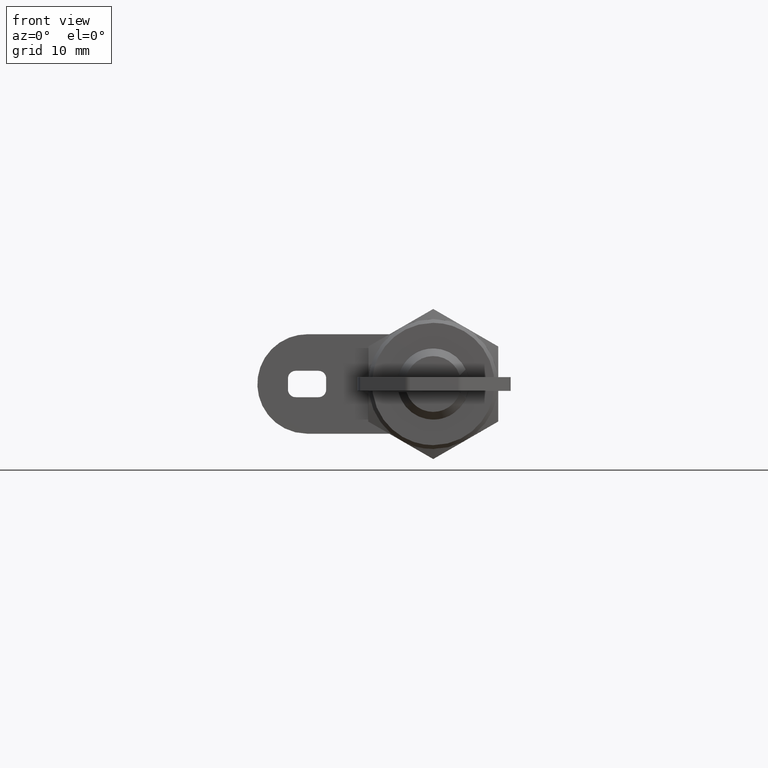
[diagram: clean part render]
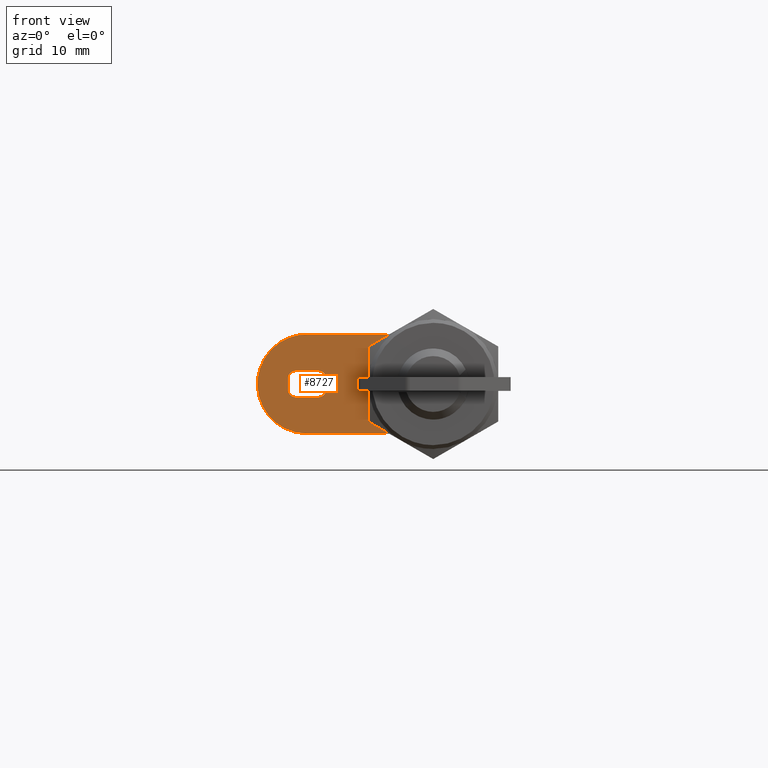
[diagram: same view with one face highlighted and labeled with its STEP entity id]
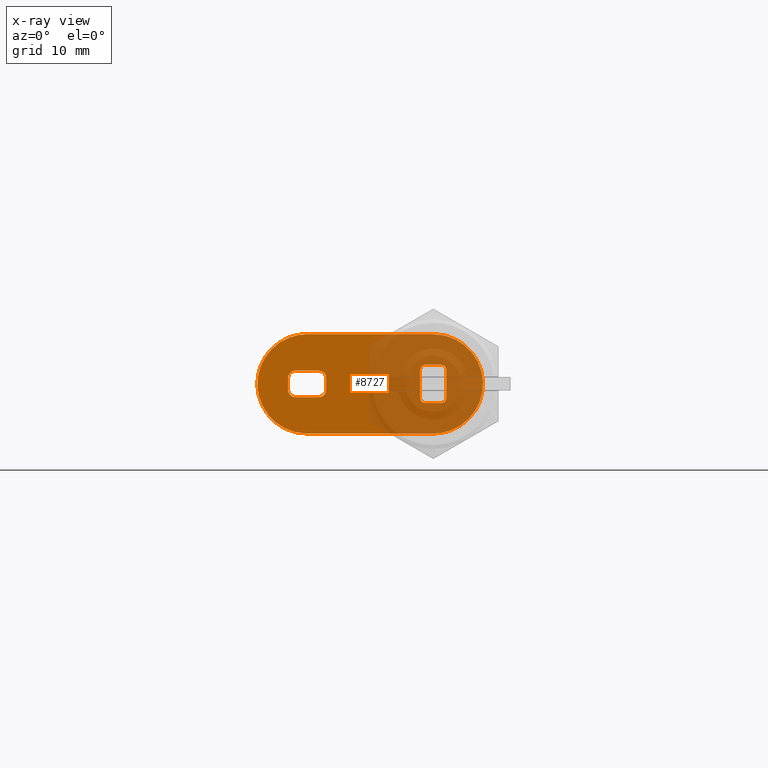
[diagram: x-ray of the same camera — body ghosted, the highlighted face saturated]
A machine part, front view. The second image highlights one B-rep face of the part: STEP entity #8727.
The next image is the same camera in x-ray: the body ghosted, the highlighted face saturated — about 50% of this face is hidden behind the body in this view.
In plain terms, the highlighted face is a freeform B-spline surface patch.
Its self-contained STEP definition (entity closure, byte-faithful):
#8490=CARTESIAN_POINT('',(16.500000000000000,-7.973524943004835,7.149349975021327));
#8491=CARTESIAN_POINT('',(16.500000000000000,24.473525734082621,7.149349975021327));
#8492=CARTESIAN_POINT('',(16.500000000000000,-7.973524943004835,-7.149350323651717));
#8493=CARTESIAN_POINT('',(16.500000000000000,24.473525734082621,-7.149350323651717));
#8494=B_SPLINE_SURFACE_WITH_KNOTS('',1,1,((#8490,#8492),(#8491,#8493)),.UNSPECIFIED.,.F.,.F.,.U.,(2,2),(2,2),(0.0,32.447050677087461),(0.0,14.298700298673040),.UNSPECIFIED.);
#8495=CARTESIAN_POINT('',(16.500000000000000,16.499999999999151,6.500000000028490));
#8496=VERTEX_POINT('',#8495);
#8497=CARTESIAN_POINT('',(16.500000000000000,-7.669882E-013,6.500000000200640));
#8498=VERTEX_POINT('',#8497);
#8499=CARTESIAN_POINT('',(16.500000000000000,16.499999999999151,6.500000000028490));
#8500=CARTESIAN_POINT('',(16.500000000000000,-7.669882E-013,6.500000000200640));
#8501=QUASI_UNIFORM_CURVE('',1,(#8499,#8500),.UNSPECIFIED.,.F.,.U.);
#8502=EDGE_CURVE('',#8496,#8498,#8501,.T.);
#8503=ORIENTED_EDGE('',*,*,#8502,.F.);
#8504=CARTESIAN_POINT('',(16.500000000000000,16.499999999999151,-6.499999999799400));
#8505=VERTEX_POINT('',#8504);
#8506=CARTESIAN_POINT('',(16.500000000000000,16.499999999999151,-6.499999999799400));
#8507=CARTESIAN_POINT('',(16.499999999999996,22.999999999999147,-6.499999999971507));
#8508=CARTESIAN_POINT('',(16.500000000000000,22.999999999999151,2.849287E-011));
#8509=CARTESIAN_POINT('',(16.499999999999996,22.999999999999147,6.500000000028493));
#8510=CARTESIAN_POINT('',(16.500000000000000,16.499999999999151,6.500000000028493));
#8518=(BOUNDED_CURVE()B_SPLINE_CURVE(2,(#8506,#8507,#8508,#8509,#8510),.UNSPECIFIED.,.F.,.U.)B_SPLINE_CURVE_WITH_KNOTS((3,2,3),(0.0,0.500000000000000,1.0),.UNSPECIFIED.)CURVE()GEOMETRIC_REPRESENTATION_ITEM()RATIONAL_B_SPLINE_CURVE((1.0,0.707106781186547,1.0,0.707106781186547,1.0))REPRESENTATION_ITEM(''));
#8519=EDGE_CURVE('',#8505,#8496,#8518,.T.);
#8520=ORIENTED_EDGE('',*,*,#8519,.F.);
#8521=CARTESIAN_POINT('',(16.500000000000000,-7.685801E-013,-6.500000000143859));
#8522=VERTEX_POINT('',#8521);
#8523=CARTESIAN_POINT('',(16.500000000000000,-7.685801E-013,-6.500000000143859));
#8524=CARTESIAN_POINT('',(16.500000000000000,16.499999999999151,-6.499999999799400));
#8525=QUASI_UNIFORM_CURVE('',1,(#8523,#8524),.UNSPECIFIED.,.F.,.U.);
#8526=EDGE_CURVE('',#8522,#8505,#8525,.T.);
#8527=ORIENTED_EDGE('',*,*,#8526,.F.);
#8528=CARTESIAN_POINT('',(16.500000000000000,-7.673862E-013,6.500000000200643));
#8529=CARTESIAN_POINT('',(16.499999999999993,-6.500000000173017,6.500000000200645));
#8530=CARTESIAN_POINT('',(16.500000000000000,-6.500000000173017,2.839340E-011));
#8531=CARTESIAN_POINT('',(16.499999999999993,-6.500000000173017,-6.500000000143857));
#8532=CARTESIAN_POINT('',(16.500000000000000,-7.673862E-013,-6.500000000143857));
#8540=(BOUNDED_CURVE()B_SPLINE_CURVE(2,(#8528,#8529,#8530,#8531,#8532),.UNSPECIFIED.,.F.,.U.)B_SPLINE_CURVE_WITH_KNOTS((3,2,3),(0.0,0.500000000000000,1.0),.UNSPECIFIED.)CURVE()GEOMETRIC_REPRESENTATION_ITEM()RATIONAL_B_SPLINE_CURVE((1.0,0.707106781186548,1.0,0.707106781186548,1.0))REPRESENTATION_ITEM(''));
#8541=EDGE_CURVE('',#8498,#8522,#8540,.T.);
#8542=ORIENTED_EDGE('',*,*,#8541,.F.);
#8543=EDGE_LOOP('',(#8503,#8520,#8527,#8542));
#8544=FACE_OUTER_BOUND('',#8543,.T.);
#8545=CARTESIAN_POINT('',(16.500000000000000,13.999999999999140,-0.724999999971501));
#8546=VERTEX_POINT('',#8545);
#8547=CARTESIAN_POINT('',(16.500000000000000,14.999999999999140,-1.724999999971500));
#8548=VERTEX_POINT('',#8547);
#8549=CARTESIAN_POINT('',(16.500000000000000,13.999999999999140,-0.724999999971502));
#8550=CARTESIAN_POINT('',(16.499999999999996,13.999999999999149,-1.139213562344597));
#8551=CARTESIAN_POINT('',(16.500000000000000,14.292893218812591,-1.432106781158049));
#8552=CARTESIAN_POINT('',(16.499999999999996,14.585786437626044,-1.724999999971502));
#8553=CARTESIAN_POINT('',(16.500000000000000,14.999999999999140,-1.724999999971502));
#8561=(BOUNDED_CURVE()B_SPLINE_CURVE(2,(#8549,#8550,#8551,#8552,#8553),.UNSPECIFIED.,.F.,.U.)B_SPLINE_CURVE_WITH_KNOTS((3,2,3),(0.0,0.500000000000000,1.0),.UNSPECIFIED.)CURVE()GEOMETRIC_REPRESENTATION_ITEM()RATIONAL_B_SPLINE_CURVE((1.0,0.923879532511287,1.0,0.923879532511287,1.0))REPRESENTATION_ITEM(''));
#8562=EDGE_CURVE('',#8546,#8548,#8561,.T.);
#8563=ORIENTED_EDGE('',*,*,#8562,.T.);
#8564=CARTESIAN_POINT('',(16.500000000000000,17.999999999999151,-1.724999999971600));
#8565=VERTEX_POINT('',#8564);
#8566=CARTESIAN_POINT('',(16.500000000000000,17.999999999999151,-1.724999999971600));
#8567=CARTESIAN_POINT('',(16.500000000000000,14.999999999999140,-1.724999999971500));
#8568=QUASI_UNIFORM_CURVE('',1,(#8566,#8567),.UNSPECIFIED.,.F.,.U.);
#8569=EDGE_CURVE('',#8565,#8548,#8568,.T.);
#8570=ORIENTED_EDGE('',*,*,#8569,.F.);
#8571=CARTESIAN_POINT('',(16.500000000000000,18.999999999999151,-0.724999999971601));
#8572=VERTEX_POINT('',#8571);
#8573=CARTESIAN_POINT('',(16.500000000000000,17.999999999999151,-1.724999999971601));
#8574=CARTESIAN_POINT('',(16.499999999999993,18.999999999999162,-1.724999999971600));
#8575=CARTESIAN_POINT('',(16.500000000000000,18.999999999999151,-0.724999999971601));
#8583=(BOUNDED_CURVE()B_SPLINE_CURVE(2,(#8573,#8574,#8575),.UNSPECIFIED.,.F.,.U.)CURVE()GEOMETRIC_REPRESENTATION_ITEM()QUASI_UNIFORM_CURVE()RATIONAL_B_SPLINE_CURVE((1.0,0.707106781186548,1.0))REPRESENTATION_ITEM(''));
#8584=EDGE_CURVE('',#8565,#8572,#8583,.T.);
#8585=ORIENTED_EDGE('',*,*,#8584,.T.);
#8586=CARTESIAN_POINT('',(16.500000000000000,18.999999999999151,0.725000000028388));
#8587=VERTEX_POINT('',#8586);
#8588=CARTESIAN_POINT('',(16.500000000000000,18.999999999999151,0.725000000028388));
#8589=CARTESIAN_POINT('',(16.500000000000000,18.999999999999151,-0.724999999971601));
#8590=QUASI_UNIFORM_CURVE('',1,(#8588,#8589),.UNSPECIFIED.,.F.,.U.);
#8591=EDGE_CURVE('',#8587,#8572,#8590,.T.);
#8592=ORIENTED_EDGE('',*,*,#8591,.F.);
#8593=CARTESIAN_POINT('',(16.500000000000000,17.999999999999151,1.725000000028390));
#8594=VERTEX_POINT('',#8593);
#8595=CARTESIAN_POINT('',(16.500000000000000,18.999999999999151,0.725000000028388));
#8596=CARTESIAN_POINT('',(16.499999999999993,18.999999999999162,1.725000000028388));
#8597=CARTESIAN_POINT('',(16.500000000000000,17.999999999999151,1.725000000028388));
#8605=(BOUNDED_CURVE()B_SPLINE_CURVE(2,(#8595,#8596,#8597),.UNSPECIFIED.,.F.,.U.)CURVE()GEOMETRIC_REPRESENTATION_ITEM()QUASI_UNIFORM_CURVE()RATIONAL_B_SPLINE_CURVE((1.0,0.707106781186548,1.0))REPRESENTATION_ITEM(''));
#8606=EDGE_CURVE('',#8587,#8594,#8605,.T.);
#8607=ORIENTED_EDGE('',*,*,#8606,.T.);
#8608=CARTESIAN_POINT('',(16.500000000000000,14.999999999999140,1.725000000028390));
#8609=VERTEX_POINT('',#8608);
#8610=CARTESIAN_POINT('',(16.500000000000000,14.999999999999140,1.725000000028390));
#8611=CARTESIAN_POINT('',(16.500000000000000,17.999999999999151,1.725000000028390));
#8612=QUASI_UNIFORM_CURVE('',1,(#8610,#8611),.UNSPECIFIED.,.F.,.U.);
#8613=EDGE_CURVE('',#8609,#8594,#8612,.T.);
#8614=ORIENTED_EDGE('',*,*,#8613,.F.);
#8615=CARTESIAN_POINT('',(16.500000000000000,13.999999999999140,0.725000000028388));
#8616=VERTEX_POINT('',#8615);
#8617=CARTESIAN_POINT('',(16.500000000000000,14.999999999999140,1.725000000028388));
#8618=CARTESIAN_POINT('',(16.499999999999993,13.999999999999142,1.725000000028388));
#8619=CARTESIAN_POINT('',(16.500000000000000,13.999999999999140,0.725000000028388));
#8627=(BOUNDED_CURVE()B_SPLINE_CURVE(2,(#8617,#8618,#8619),.UNSPECIFIED.,.F.,.U.)CURVE()GEOMETRIC_REPRESENTATION_ITEM()QUASI_UNIFORM_CURVE()RATIONAL_B_SPLINE_CURVE((1.0,0.707106781186548,1.0))REPRESENTATION_ITEM(''));
#8628=EDGE_CURVE('',#8609,#8616,#8627,.T.);
#8629=ORIENTED_EDGE('',*,*,#8628,.T.);
#8630=CARTESIAN_POINT('',(16.500000000000000,13.999999999999140,-0.724999999971501));
#8631=CARTESIAN_POINT('',(16.500000000000000,13.999999999999140,0.725000000028388));
#8632=QUASI_UNIFORM_CURVE('',1,(#8630,#8631),.UNSPECIFIED.,.F.,.U.);
#8633=EDGE_CURVE('',#8546,#8616,#8632,.T.);
#8634=ORIENTED_EDGE('',*,*,#8633,.F.);
#8635=EDGE_LOOP('',(#8563,#8570,#8585,#8592,#8607,#8614,#8629,#8634));
#8636=FACE_BOUND('',#8635,.T.);
#8637=CARTESIAN_POINT('',(16.500000000000000,1.025000000012804,-2.499999999971650));
#8638=VERTEX_POINT('',#8637);
#8639=CARTESIAN_POINT('',(16.500000000000000,1.725000000012805,-1.799999999971650));
#8640=VERTEX_POINT('',#8639);
#8641=CARTESIAN_POINT('',(16.500000000000000,1.025000000012804,-2.499999999971650));
#8642=CARTESIAN_POINT('',(16.499999999999996,1.725000000012804,-2.499999999971650));
#8643=CARTESIAN_POINT('',(16.500000000000000,1.725000000012804,-1.799999999971650));
#8651=(BOUNDED_CURVE()B_SPLINE_CURVE(2,(#8641,#8642,#8643),.UNSPECIFIED.,.F.,.U.)CURVE()GEOMETRIC_REPRESENTATION_ITEM()QUASI_UNIFORM_CURVE()RATIONAL_B_SPLINE_CURVE((1.0,0.707106781186547,1.0))REPRESENTATION_ITEM(''));
#8652=EDGE_CURVE('',#8638,#8640,#8651,.T.);
#8653=ORIENTED_EDGE('',*,*,#8652,.T.);
#8654=CARTESIAN_POINT('',(16.500000000000000,1.725000000012805,1.800000000028350));
#8655=VERTEX_POINT('',#8654);
#8656=CARTESIAN_POINT('',(16.500000000000000,1.725000000012805,1.800000000028350));
#8657=CARTESIAN_POINT('',(16.500000000000000,1.725000000012805,-1.799999999971650));
#8658=QUASI_UNIFORM_CURVE('',1,(#8656,#8657),.UNSPECIFIED.,.F.,.U.);
#8659=EDGE_CURVE('',#8655,#8640,#8658,.T.);
#8660=ORIENTED_EDGE('',*,*,#8659,.F.);
#8661=CARTESIAN_POINT('',(16.500000000000000,1.025000000012804,2.500000000028350));
#8662=VERTEX_POINT('',#8661);
#8663=CARTESIAN_POINT('',(16.500000000000000,1.725000000012804,1.800000000028350));
#8664=CARTESIAN_POINT('',(16.499999999999996,1.725000000012804,2.500000000028350));
#8665=CARTESIAN_POINT('',(16.500000000000000,1.025000000012804,2.500000000028350));
#8673=(BOUNDED_CURVE()B_SPLINE_CURVE(2,(#8663,#8664,#8665),.UNSPECIFIED.,.F.,.U.)CURVE()GEOMETRIC_REPRESENTATION_ITEM()QUASI_UNIFORM_CURVE()RATIONAL_B_SPLINE_CURVE((1.0,0.707106781186547,1.0))REPRESENTATION_ITEM(''));
#8674=EDGE_CURVE('',#8655,#8662,#8673,.T.);
#8675=ORIENTED_EDGE('',*,*,#8674,.T.);
#8676=CARTESIAN_POINT('',(16.500000000000000,-1.024999999987084,2.500000000028350));
#8677=VERTEX_POINT('',#8676);
#8678=CARTESIAN_POINT('',(16.500000000000000,-1.024999999987084,2.500000000028350));
#8679=CARTESIAN_POINT('',(16.500000000000000,1.025000000012804,2.500000000028350));
#8680=QUASI_UNIFORM_CURVE('',1,(#8678,#8679),.UNSPECIFIED.,.F.,.U.);
#8681=EDGE_CURVE('',#8677,#8662,#8680,.T.);
#8682=ORIENTED_EDGE('',*,*,#8681,.F.);
#8683=CARTESIAN_POINT('',(16.500000000000000,-1.724999999987085,1.800000000028350));
#8684=VERTEX_POINT('',#8683);
#8685=CARTESIAN_POINT('',(16.500000000000000,-1.024999999987084,2.500000000028350));
#8686=CARTESIAN_POINT('',(16.499999999999996,-1.724999999987085,2.500000000028350));
#8687=CARTESIAN_POINT('',(16.500000000000000,-1.724999999987084,1.800000000028350));
#8695=(BOUNDED_CURVE()B_SPLINE_CURVE(2,(#8685,#8686,#8687),.UNSPECIFIED.,.F.,.U.)CURVE()GEOMETRIC_REPRESENTATION_ITEM()QUASI_UNIFORM_CURVE()RATIONAL_B_SPLINE_CURVE((1.0,0.707106781186547,1.0))REPRESENTATION_ITEM(''));
#8696=EDGE_CURVE('',#8677,#8684,#8695,.T.);
#8697=ORIENTED_EDGE('',*,*,#8696,.T.);
#8698=CARTESIAN_POINT('',(16.500000000000000,-1.724999999987085,-1.799999999971650));
#8699=VERTEX_POINT('',#8698);
#8700=CARTESIAN_POINT('',(16.500000000000000,-1.724999999987085,-1.799999999971650));
#8701=CARTESIAN_POINT('',(16.500000000000000,-1.724999999987085,1.800000000028350));
#8702=QUASI_UNIFORM_CURVE('',1,(#8700,#8701),.UNSPECIFIED.,.F.,.U.);
#8703=EDGE_CURVE('',#8699,#8684,#8702,.T.);
#8704=ORIENTED_EDGE('',*,*,#8703,.F.);
#8705=CARTESIAN_POINT('',(16.500000000000000,-1.024999999987084,-2.499999999971650));
#8706=VERTEX_POINT('',#8705);
#8707=CARTESIAN_POINT('',(16.500000000000000,-1.724999999987084,-1.799999999971650));
#8708=CARTESIAN_POINT('',(16.499999999999996,-1.724999999987085,-2.499999999971650));
#8709=CARTESIAN_POINT('',(16.500000000000000,-1.024999999987084,-2.499999999971650));
#8717=(BOUNDED_CURVE()B_SPLINE_CURVE(2,(#8707,#8708,#8709),.UNSPECIFIED.,.F.,.U.)CURVE()GEOMETRIC_REPRESENTATION_ITEM()QUASI_UNIFORM_CURVE()RATIONAL_B_SPLINE_CURVE((1.0,0.707106781186547,1.0))REPRESENTATION_ITEM(''));
#8718=EDGE_CURVE('',#8699,#8706,#8717,.T.);
#8719=ORIENTED_EDGE('',*,*,#8718,.T.);
#8720=CARTESIAN_POINT('',(16.500000000000000,1.025000000012804,-2.499999999971650));
#8721=CARTESIAN_POINT('',(16.500000000000000,-1.024999999987084,-2.499999999971650));
#8722=QUASI_UNIFORM_CURVE('',1,(#8720,#8721),.UNSPECIFIED.,.F.,.U.);
#8723=EDGE_CURVE('',#8638,#8706,#8722,.T.);
#8724=ORIENTED_EDGE('',*,*,#8723,.F.);
#8725=EDGE_LOOP('',(#8653,#8660,#8675,#8682,#8697,#8704,#8719,#8724));
#8726=FACE_BOUND('',#8725,.T.);
#8727=ADVANCED_FACE('',(#8544,#8636,#8726),#8494,.T.);